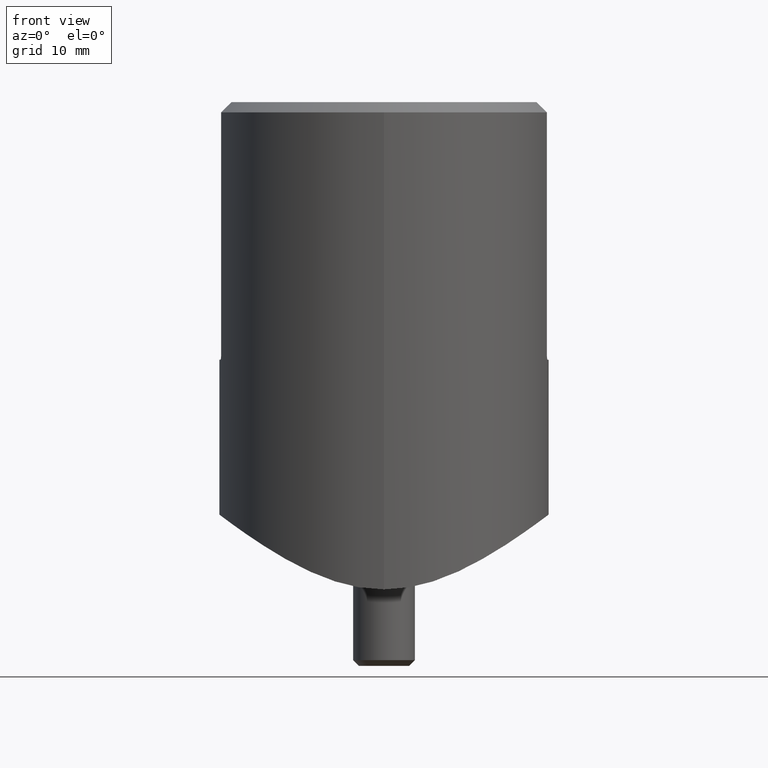
[diagram: clean part render]
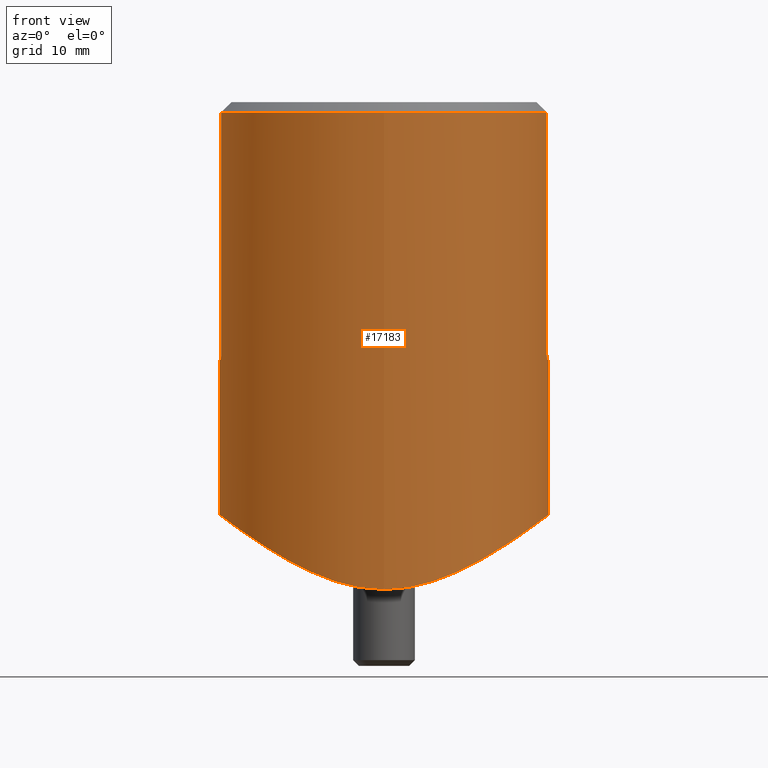
[diagram: same view with one face highlighted and labeled with its STEP entity id]
A machine part, front view. The second image highlights one B-rep face of the part: STEP entity #17183.
In plain terms, the highlighted cylindrical surface (bore or boss wall) has radius 16 mm, axis along (0, 0, 1).
Its self-contained STEP definition (entity closure, byte-faithful):
#56 = CARTESIAN_POINT ( 'NONE',  ( -6.753391629440697486, -14.51414094617094541, -5.744919992293476163 ) ) ;
#299 = CARTESIAN_POINT ( 'NONE',  ( -15.87450786638754430, -2.000000000000001332, 15.00000000000000000 ) ) ;
#352 = CYLINDRICAL_SURFACE ( 'NONE', #7945, 16.00000000000000000 ) ;
#368 = CARTESIAN_POINT ( 'NONE',  ( 4.531723979720646334, -15.34708202131101551, -6.573996821747202901 ) ) ;
#491 = CARTESIAN_POINT ( 'NONE',  ( 15.96038222026085052, -1.158465018893782839, -0.02988661071752247642 ) ) ;
#550 = CARTESIAN_POINT ( 'NONE',  ( 10.54534951738235549, 12.04347108769511721, -3.748717473024008484 ) ) ;
#591 = ORIENTED_EDGE ( 'NONE', *, *, #4982, .T. ) ;
#902 = VERTEX_POINT ( 'NONE', #2369 ) ;
#1219 = CARTESIAN_POINT ( 'NONE',  ( -15.89300773109270182, -2.143837112147937596, -0.08112904144850674459 ) ) ;
#1281 = CARTESIAN_POINT ( 'NONE',  ( -9.758902315905764624, -12.68913418246463820, -4.212401688455844173 ) ) ;
#1340 = CARTESIAN_POINT ( 'NONE',  ( -15.96055035985698822, 1.156137502011802098, -0.02975983528081871735 ) ) ;
#1399 = CARTESIAN_POINT ( 'NONE',  ( -8.057077116543373663, 13.86010795475197988, -5.142077833866056658 ) ) ;
#1464 = CARTESIAN_POINT ( 'NONE',  ( -5.754956585892149867, 14.93797737099522926, -6.154274900691996564 ) ) ;
#1758 = CARTESIAN_POINT ( 'NONE',  ( 5.771737397981975271, -14.93146884535304508, -6.147814608694907257 ) ) ;
#1817 = CARTESIAN_POINT ( 'NONE',  ( -1.626303258728256651E-16, -16.00000000000000711, -7.291729079429031479 ) ) ;
#1876 = CARTESIAN_POINT ( 'NONE',  ( 15.93817551823421752, -1.431354046034916783, -0.04662970192159696103 ) ) ;
#1967 = CARTESIAN_POINT ( 'NONE',  ( 0.000000000000000000, 4.601381025138083840E-16, 38.99999999999999289 ) ) ;
#2090 = DIRECTION ( 'NONE',  ( 0.000000000000000000, -1.917242093807529592E-17, -1.000000000000000000 ) ) ;
#2369 = CARTESIAN_POINT ( 'NONE',  ( 15.80348062927910568, -2.500000000000001332, 15.50000000000000000 ) ) ;
#2569 = CARTESIAN_POINT ( 'NONE',  ( 15.87450786638754430, -2.000000000000001332, 15.00000000000000000 ) ) ;
#2594 = CARTESIAN_POINT ( 'NONE',  ( -2.152365949216199059, 15.86405722069567759, -7.136620393514475857 ) ) ;
#2654 = CARTESIAN_POINT ( 'NONE',  ( -11.57840101167730751, 11.05399059451595534, -3.105182737411339655 ) ) ;
#2666 = VERTEX_POINT ( 'NONE', #6293 ) ;
#2717 = CARTESIAN_POINT ( 'NONE',  ( -11.98245021674925859, -10.65077794842614090, -2.850364466900145999 ) ) ;
#2776 = CARTESIAN_POINT ( 'NONE',  ( -13.49848736592615772, -8.605464545337859761, -1.819466037989154517 ) ) ;
#2840 = CARTESIAN_POINT ( 'NONE',  ( -14.92050240124356719, -5.801501905224089484, -0.8029150028068625655 ) ) ;
#2931 = CARTESIAN_POINT ( 'NONE',  ( 15.80348062927910568, -2.500000000000001332, 38.99999999999999289 ) ) ;
#2961 = CARTESIAN_POINT ( 'NONE',  ( 15.40718059028136366, -4.348134251234794689, -0.4440570060545319664 ) ) ;
#3054 = CARTESIAN_POINT ( 'NONE',  ( 15.80348062927910568, -2.500000000000001332, 40.00000000000000000 ) ) ;
#3141 = CARTESIAN_POINT ( 'NONE',  ( -15.85792382327410088, -2.131631761430428984, 15.00000000000000178 ) ) ;
#3164 = LINE ( 'NONE', #6597, #12757 ) ;
#3206 = CARTESIAN_POINT ( 'NONE',  ( 14.89176136056661015, -5.874881164664799371, -0.8239423185185081877 ) ) ;
#3259 = ORIENTED_EDGE ( 'NONE', *, *, #4796, .F. ) ;
#3268 = CARTESIAN_POINT ( 'NONE',  ( 15.56733302331528002, 3.735479599010235852, -0.3247361820514800268 ) ) ;
#3498 = EDGE_LOOP ( 'NONE', ( #9939 ) ) ;
#3545 = CIRCLE ( 'NONE', #9376, 16.00000000000000000 ) ;
#3905 = CARTESIAN_POINT ( 'NONE',  ( 15.80348062927910568, -2.500000000000001332, 15.50000000000000000 ) ) ;
#3985 = CARTESIAN_POINT ( 'NONE',  ( -5.268028553944183123, 15.11712110581098756, -6.335136773285667822 ) ) ;
#4050 = CARTESIAN_POINT ( 'NONE',  ( 5.346153119692603539, 15.11582109812178842, -6.324808556874159216 ) ) ;
#4081 = CARTESIAN_POINT ( 'NONE',  ( 15.83982324873985448, -2.260249742456961641, 15.05360751858066592 ) ) ;
#4099 = DIRECTION ( 'NONE',  ( 0.000000000000000000, -1.000000000000000000, 0.000000000000000000 ) ) ;
#4111 = CARTESIAN_POINT ( 'NONE',  ( -1.056870708889853017, 15.96745712242029747, -7.254365006510026248 ) ) ;
#4170 = CARTESIAN_POINT ( 'NONE',  ( -10.53261026499774111, -12.05464316011252635, -3.756428090057857272 ) ) ;
#4227 = CARTESIAN_POINT ( 'NONE',  ( -2.744943716173101844, -15.77198210547673263, -7.032738573799941051 ) ) ;
#4383 = EDGE_CURVE ( 'NONE', #11220, #11220, #11754, .T. ) ;
#4402 = DIRECTION ( 'NONE',  ( 0.000000000000000000, -1.000000000000000000, 0.000000000000000000 ) ) ;
#4533 = CARTESIAN_POINT ( 'NONE',  ( -15.87450786638754430, -2.000000000000001332, 15.00000000000000000 ) ) ;
#4540 = CARTESIAN_POINT ( 'NONE',  ( 8.069525454708173839, -13.85284926789490356, -5.135791623346253942 ) ) ;
#4654 = CARTESIAN_POINT ( 'NONE',  ( 15.89386238591646006, 2.137241126135760450, -0.08048320668668526578 ) ) ;
#4796 = EDGE_CURVE ( 'NONE', #13333, #902, #15072, .T. ) ;
#4982 = EDGE_CURVE ( 'NONE', #13333, #13080, #3545, .T. ) ;
#5383 = CARTESIAN_POINT ( 'NONE',  ( -14.26019180554732735, 7.332276696872193966, -1.282429291661284720 ) ) ;
#5441 = CARTESIAN_POINT ( 'NONE',  ( 0.5965268251431751212, 15.99832371518752971, -7.289800709176403437 ) ) ;
#5496 = CARTESIAN_POINT ( 'NONE',  ( -15.76648506597797628, 2.776303286397710846, -0.1758091484875855537 ) ) ;
#5498 = EDGE_CURVE ( 'NONE', #2666, #7756, #16807, .T. ) ;
#5528 = FACE_OUTER_BOUND ( 'NONE', #7461, .T. ) ;
#5566 = CARTESIAN_POINT ( 'NONE',  ( -15.99903379765573597, 0.3281914582495839006, -0.0007292077845556056486 ) ) ;
#5610 = EDGE_CURVE ( 'NONE', #11529, #7756, #17665, .T. ) ;
#5632 = CARTESIAN_POINT ( 'NONE',  ( -1.108154192858799014, -15.97102493837828874, -7.258201291673557876 ) ) ;
#5754 = CARTESIAN_POINT ( 'NONE',  ( 11.92625720807335910, -10.67808563645542996, -2.880181925728674486 ) ) ;
#5940 = CARTESIAN_POINT ( 'NONE',  ( 9.746331983490081896, -12.72900965396750195, -4.231425020445266583 ) ) ;
#6001 = CARTESIAN_POINT ( 'NONE',  ( 14.28069204721817265, 7.234323102792280302, -1.266439997043649068 ) ) ;
#6067 = CARTESIAN_POINT ( 'NONE',  ( 13.77770318303593200, 8.151594390254944145, -1.623642983337796997 ) ) ;
#6168 = CARTESIAN_POINT ( 'NONE',  ( 8.119993183499971678, 13.79568981129034100, -5.099576934542840334 ) ) ;
#6293 = CARTESIAN_POINT ( 'NONE',  ( 15.87450786638754430, -2.000000000000001332, 15.00000000000000000 ) ) ;
#6597 = CARTESIAN_POINT ( 'NONE',  ( -15.80348062927910568, -2.500000000000001332, 40.00000000000000000 ) ) ;
#6797 = CARTESIAN_POINT ( 'NONE',  ( 4.352020226591373664, 15.43429148884953683, -6.662775313353883178 ) ) ;
#6864 = CARTESIAN_POINT ( 'NONE',  ( -2.687656860395874592, 15.78178495399723857, -7.043697160062455609 ) ) ;
#6921 = CARTESIAN_POINT ( 'NONE',  ( -14.27560816033160584, -7.244362112044290924, -1.270084714189328112 ) ) ;
#6985 = CARTESIAN_POINT ( 'NONE',  ( -15.42813627828937761, -4.273538380135216919, -0.4284908929040890935 ) ) ;
#7048 = CARTESIAN_POINT ( 'NONE',  ( -0.5566504948391410856, -16.00000000000000711, -7.291729079429030591 ) ) ;
#7114 = CARTESIAN_POINT ( 'NONE',  ( 4.274968091761180311, -15.42062706231572200, -6.651671224892224288 ) ) ;
#7351 = CARTESIAN_POINT ( 'NONE',  ( -15.80348062927910568, -2.500000000000001332, 15.50000000000000000 ) ) ;
#7360 = CARTESIAN_POINT ( 'NONE',  ( 10.51715629513473615, -12.09911014512030114, -3.771756452734974285 ) ) ;
#7416 = CARTESIAN_POINT ( 'NONE',  ( 14.92410645656392099, 5.792181153928135373, -0.8002759226914162305 ) ) ;
#7461 = EDGE_LOOP ( 'NONE', ( #3259, #591, #10200, #7802, #9592, #11153 ) ) ;
#7475 = CARTESIAN_POINT ( 'NONE',  ( 11.99258949362489268, 10.63932029495834009, -2.843711833477326145 ) ) ;
#7756 = VERTEX_POINT ( 'NONE', #299 ) ;
#7802 = ORIENTED_EDGE ( 'NONE', *, *, #5610, .T. ) ;
#7945 = AXIS2_PLACEMENT_3D ( 'NONE', #11438, #15741, #4402 ) ;
#8137 = CARTESIAN_POINT ( 'NONE',  ( -1.333585453266486809, 15.94668609802829806, -7.230571169322786318 ) ) ;
#8196 = CARTESIAN_POINT ( 'NONE',  ( -13.77180435808656078, -8.161566974566655475, -1.627797001112122333 ) ) ;
#8241 = DIRECTION ( 'NONE',  ( -0.000000000000000000, 1.917242093807535139E-17, 1.000000000000000000 ) ) ;
#8252 = CARTESIAN_POINT ( 'NONE',  ( -12.62999147872431926, -9.876033621038898147, -2.417550034912908874 ) ) ;
#8311 = CARTESIAN_POINT ( 'NONE',  ( -15.99088091184100158, 0.6062585062563703442, -0.006883825660769258420 ) ) ;
#8376 = CARTESIAN_POINT ( 'NONE',  ( -15.54416977350807372, 3.829973541178443242, -0.3420095988910259455 ) ) ;
#8393 = CARTESIAN_POINT ( 'NONE',  ( 7.233277135268926905, 14.28058292065914792, -5.528062286295822858 ) ) ;
#8562 = CARTESIAN_POINT ( 'NONE',  ( 15.76621372928793363, -2.777687048103556045, -0.1760122867516505651 ) ) ;
#8743 = CARTESIAN_POINT ( 'NONE',  ( 14.26218099413760143, -7.328392304349673481, -1.281001842825398196 ) ) ;
#8803 = CARTESIAN_POINT ( 'NONE',  ( 15.99079573636171681, -0.6085174892927568413, -0.006948106034783751300 ) ) ;
#8865 = CARTESIAN_POINT ( 'NONE',  ( 10.91932072216732230, 11.70567254547024838, -3.519662244289357922 ) ) ;
#9376 = AXIS2_PLACEMENT_3D ( 'NONE', #1967, #2090, #11840 ) ;
#9529 = CARTESIAN_POINT ( 'NONE',  ( -9.735216759461760461, 12.73752875661526218, -4.237841588247261093 ) ) ;
#9587 = CARTESIAN_POINT ( 'NONE',  ( -14.89021840252989826, 5.878795276039431528, -0.8250707431238328837 ) ) ;
#9592 = ORIENTED_EDGE ( 'NONE', *, *, #5498, .F. ) ;
#9651 = CARTESIAN_POINT ( 'NONE',  ( -12.88432987720447720, 9.500350630096173532, -2.242115214413923585 ) ) ;
#9717 = CARTESIAN_POINT ( 'NONE',  ( -15.93838224926133051, 1.429072528165982847, -0.04647392374665486325 ) ) ;
#9780 = CARTESIAN_POINT ( 'NONE',  ( -4.326716317625136199, -15.44150472164365162, -6.670485371267386832 ) ) ;
#9939 = ORIENTED_EDGE ( 'NONE', *, *, #4383, .T. ) ;
#9967 = CARTESIAN_POINT ( 'NONE',  ( 12.57846710772382615, -9.901479135589150715, -2.449054475537322251 ) ) ;
#10028 = CARTESIAN_POINT ( 'NONE',  ( 1.113300989678281949, -15.99999999999999645, -7.291729079429030591 ) ) ;
#10085 = CARTESIAN_POINT ( 'NONE',  ( 5.286163273088747339, -15.11073370287291517, -6.328641315693582570 ) ) ;
#10152 = CARTESIAN_POINT ( 'NONE',  ( 12.88950797468065979, -9.493266285335844046, -2.238588735692320419 ) ) ;
#10200 = ORIENTED_EDGE ( 'NONE', *, *, #17427, .T. ) ;
#10211 = CARTESIAN_POINT ( 'NONE',  ( 15.10862621947141982, 5.293301029291518134, -0.6646922037318696574 ) ) ;
#10736 = CARTESIAN_POINT ( 'NONE',  ( -7.171334250182797021, 14.33955152853920900, -5.575490127315395839 ) ) ;
#10949 = CARTESIAN_POINT ( 'NONE',  ( -1.626303258728256651E-16, -16.00000000000000711, -7.291729079429031479 ) ) ;
#11015 = CARTESIAN_POINT ( 'NONE',  ( -8.102393063386971406, -13.80604616813511321, -5.108464127569389390 ) ) ;
#11071 = CARTESIAN_POINT ( 'NONE',  ( 2.229268999370809468, 15.85335027484461179, -7.124529434976298425 ) ) ;
#11103 = CARTESIAN_POINT ( 'NONE',  ( 15.85792072299573796, -2.131656369127064465, 14.99999999999999822 ) ) ;
#11128 = CARTESIAN_POINT ( 'NONE',  ( -15.10555658044030203, -5.302139162929823790, -0.6669524626863310157 ) ) ;
#11153 = ORIENTED_EDGE ( 'NONE', *, *, #11778, .T. ) ;
#11192 = CARTESIAN_POINT ( 'NONE',  ( -3.739527861968691802, 15.56612241706349131, -6.806894729516119291 ) ) ;
#11220 = VERTEX_POINT ( 'NONE', #12022 ) ;
#11381 = CARTESIAN_POINT ( 'NONE',  ( 2.190154533132607551, -15.88540934000919336, -7.157318920131868545 ) ) ;
#11438 = CARTESIAN_POINT ( 'NONE',  ( 0.000000000000000000, 0.000000000000000000, 15.00000000000000000 ) ) ;
#11493 = CARTESIAN_POINT ( 'NONE',  ( -15.83976815885563028, -2.260630164236740569, 15.05385874946701996 ) ) ;
#11529 = VERTEX_POINT ( 'NONE', #13619 ) ;
#11561 = CARTESIAN_POINT ( 'NONE',  ( 3.498910213335222341, -15.61502690496191192, -6.860635304502699761 ) ) ;
#11620 = CARTESIAN_POINT ( 'NONE',  ( 15.85122743626976316, -2.243979007079323296, -0.1120898212579618525 ) ) ;
#11754 = B_SPLINE_CURVE_WITH_KNOTS ( 'NONE', 3,
 ( #1817, #10028, #11381, #11561, #14297, #7114, #368, #10085, #1758, #17072, #4540, #5940, #7360, #16900, #5754, #9967, #10152, #15688, #8743, #3206, #12958, #2961, #15507, #8562, #11620, #1876, #491, #8803, #13018, #17199, #4654, #3268, #15746, #10211, #7416, #14413, #6001, #6067, #17137, #15806, #7475, #8865, #550, #16753, #17592, #12773, #6168, #8393, #15135, #4050, #6797, #17880, #11071, #15381, #5441, #16657, #12596, #4111, #8137, #2594, #6864, #11192, #15314, #3985, #1464, #10736, #1399, #9529, #13871, #2654, #12354, #13749, #9651, #17942, #5383, #9587, #16599, #17997, #8376, #5496, #15250, #9717, #1340, #8311, #5566, #12534, #1219, #15189, #6985, #11128, #2840, #16540, #6921, #8196, #2776, #8252, #2717, #13810, #4170, #1281, #13930, #12471, #11015, #16713, #56, #12409, #9780, #4227, #13996, #5632, #7048, #10949 ),
 .UNSPECIFIED., .T., .F.,
 ( 4, 2, 2, 2, 2, 2, 2, 2, 2, 2, 2, 2, 2, 2, 2, 2, 2, 2, 2, 2, 2, 2, 2, 2, 2, 2, 2, 2, 2, 2, 2, 2, 2, 2, 2, 2, 2, 2, 2, 2, 2, 2, 2, 2, 2, 2, 2, 2, 2, 2, 2, 2, 2, 2, 2, 4 ),
 ( 0.000000000000000000, 0.003270923905546550305, 0.004088654881933187664, 0.004906385858319823288, 0.006541847811093094538, 0.009812771716639634434, 0.01308369562218617520, 0.01471915757495944645, 0.01635461952773271943, 0.01962554343327926540, 0.02126100538605254359, 0.02289646733882581831, 0.02453192929159909302, 0.02534966026798573038, 0.02616739124437236774, 0.02943831514991891718, 0.03107377710269219537, 0.03270923905546546662, 0.03434470100823874134, 0.03598016296101201605, 0.03925108686655856549, 0.04088654881933184715, 0.04252201077210512187, 0.04415747272487839659, 0.04579293467765166437, 0.04906385858319821380, 0.05069932053597148158, 0.05233478248874475630, 0.05315251346513139713, 0.05397024444151803102, 0.05560570639429130574, 0.05724116834706458046, 0.05887663029983785518, 0.06214755420538440461, 0.06541847811093093323, 0.06705394006370421489, 0.06868940201647748267, 0.07196032592202401823, 0.07359578787479729989, 0.07523124982757056767, 0.07686671178034384933, 0.07768444275673049015, 0.07850217373311711710, 0.08177309763866368042, 0.08340855959143694820, 0.08504402154421022986, 0.08667948349698349764, 0.08831494544975677929, 0.09158586935530332873, 0.09322133130807659651, 0.09485679326084987817, 0.09649225521362315983, 0.09812771716639642761, 0.1013986410719429909, 0.1030341030247162726, 0.1046695649774895404 ),
 .UNSPECIFIED. ) ;
#11778 = EDGE_CURVE ( 'NONE', #2666, #902, #14653, .T. ) ;
#11840 = DIRECTION ( 'NONE',  ( 0.000000000000000000, 1.000000000000000000, 0.000000000000000000 ) ) ;
#11983 = DIRECTION ( 'NONE',  ( -0.000000000000000000, -0.000000000000000000, -1.000000000000000000 ) ) ;
#12022 = CARTESIAN_POINT ( 'NONE',  ( 0.000000000000000000, -16.00000000000000000, -7.291729079429027927 ) ) ;
#12091 = CARTESIAN_POINT ( 'NONE',  ( -15.80348062927910568, -2.500000000000001332, 38.99999999999999289 ) ) ;
#12267 = CARTESIAN_POINT ( 'NONE',  ( 15.80348062927911279, -2.500000000000001332, 15.36726831469455590 ) ) ;
#12354 = CARTESIAN_POINT ( 'NONE',  ( -11.91979508669438559, 10.68529591704264803, -2.884390847298735405 ) ) ;
#12409 = CARTESIAN_POINT ( 'NONE',  ( -5.323262074186184023, -15.12406111179118895, -6.333194112839514389 ) ) ;
#12462 = CARTESIAN_POINT ( 'NONE',  ( 0.000000000000000000, -5.881307594028002552E-33, 15.00000000000000000 ) ) ;
#12471 = CARTESIAN_POINT ( 'NONE',  ( -8.530584751657279696, -13.54542712704967222, -4.887748404140132230 ) ) ;
#12534 = CARTESIAN_POINT ( 'NONE',  ( -16.00345714189641200, -1.057370784662350571, 0.002609157905319483845 ) ) ;
#12596 = CARTESIAN_POINT ( 'NONE',  ( -0.5037692406366237607, 15.99446401739765911, -7.285347897839688613 ) ) ;
#12707 = CARTESIAN_POINT ( 'NONE',  ( -15.81232862837629938, -2.445192715101429215, 15.23775289447199377 ) ) ;
#12757 = VECTOR ( 'NONE', #11983, 1000.000000000000000 ) ;
#12773 = CARTESIAN_POINT ( 'NONE',  ( 8.547489509463581214, 13.53474719313155639, -4.878883950974104877 ) ) ;
#12958 = CARTESIAN_POINT ( 'NONE',  ( 15.08152120074196212, -5.369842034908922201, -0.6846341111156308834 ) ) ;
#13018 = CARTESIAN_POINT ( 'NONE',  ( 15.99897892157768986, -0.3303358369276694351, -0.0007706234295385332254 ) ) ;
#13080 = VERTEX_POINT ( 'NONE', #12091 ) ;
#13333 = VERTEX_POINT ( 'NONE', #2931 ) ;
#13619 = CARTESIAN_POINT ( 'NONE',  ( -15.80348062927910568, -2.500000000000001332, 15.50000000000000000 ) ) ;
#13749 = CARTESIAN_POINT ( 'NONE',  ( -12.57240116826240062, 9.909177191261946405, -2.453125730899654577 ) ) ;
#13810 = CARTESIAN_POINT ( 'NONE',  ( -10.90769042888932283, -11.71651977053787519, -3.526850500189124382 ) ) ;
#13871 = CARTESIAN_POINT ( 'NONE',  ( -10.50904057238612843, 12.10621239080875711, -3.776679396018565615 ) ) ;
#13930 = CARTESIAN_POINT ( 'NONE',  ( -9.358846647060939716, -12.98697276874857742, -4.439728925681753147 ) ) ;
#13996 = CARTESIAN_POINT ( 'NONE',  ( -2.200707422548509484, -15.85744399762433332, -7.129148616092828128 ) ) ;
#14167 = CARTESIAN_POINT ( 'NONE',  ( -15.80348062927910568, -2.500000000000001776, 15.36729166975287697 ) ) ;
#14297 = CARTESIAN_POINT ( 'NONE',  ( 3.758788254245248872, -15.55450423640522217, -6.794896491058985077 ) ) ;
#14413 = CARTESIAN_POINT ( 'NONE',  ( 14.51014338279302684, 6.762695842455205053, -1.101143069998163027 ) ) ;
#14653 = B_SPLINE_CURVE_WITH_KNOTS ( 'NONE', 3,
 ( #2569, #11103, #4081, #16511, #12267, #3905 ),
 .UNSPECIFIED., .F., .F.,
 ( 4, 2, 4 ),
 ( 0.000000000000000000, 0.0003924426019321293653, 0.0007848852038642587306 ),
 .UNSPECIFIED. ) ;
#15072 = LINE ( 'NONE', #3054, #16398 ) ;
#15135 = CARTESIAN_POINT ( 'NONE',  ( 6.772154663697476096, 14.50535319712574989, -5.736670131836068443 ) ) ;
#15189 = CARTESIAN_POINT ( 'NONE',  ( -15.56561844658886251, -3.742653530746751667, -0.3260154359395961987 ) ) ;
#15250 = CARTESIAN_POINT ( 'NONE',  ( -15.85150726692695677, 2.242058300729962372, -0.1118794205343183606 ) ) ;
#15314 = CARTESIAN_POINT ( 'NONE',  ( -4.258661867867296280, 15.43189147409027839, -6.662179158877357565 ) ) ;
#15320 = AXIS2_PLACEMENT_3D ( 'NONE', #12462, #8241, #4099 ) ;
#15381 = CARTESIAN_POINT ( 'NONE',  ( 1.142913724488035410, 15.96847216946093262, -7.255270417217980494 ) ) ;
#15507 = CARTESIAN_POINT ( 'NONE',  ( 15.54419297085113350, -3.829765734314748649, -0.3419919665302547096 ) ) ;
#15688 = CARTESIAN_POINT ( 'NONE',  ( 13.75938620449517025, -8.229542736394854785, -1.640257825219575194 ) ) ;
#15741 = DIRECTION ( 'NONE',  ( -0.000000000000000000, 1.917242093807535139E-17, 1.000000000000000000 ) ) ;
#15746 = CARTESIAN_POINT ( 'NONE',  ( 15.43016054019872918, 4.266118579000353961, -0.4269854295512198195 ) ) ;
#15806 = CARTESIAN_POINT ( 'NONE',  ( 12.63886533547549007, 9.864543178264064238, -2.411556408000921081 ) ) ;
#16398 = VECTOR ( 'NONE', #16991, 1000.000000000000000 ) ;
#16511 = CARTESIAN_POINT ( 'NONE',  ( 15.81234660620866528, -2.445081645818321103, 15.23751475380075071 ) ) ;
#16540 = CARTESIAN_POINT ( 'NONE',  ( -14.50553246062891155, -6.772617241176026148, -1.104474218285172560 ) ) ;
#16599 = CARTESIAN_POINT ( 'NONE',  ( -15.08020447359077387, 5.373676401813410664, -0.6856038990527589805 ) ) ;
#16657 = CARTESIAN_POINT ( 'NONE',  ( -0.2280685718240007542, 16.00073548977696447, -7.292575174109972913 ) ) ;
#16713 = CARTESIAN_POINT ( 'NONE',  ( -7.214462897892111037, -14.29010879053191552, -5.536755499413227533 ) ) ;
#16753 = CARTESIAN_POINT ( 'NONE',  ( 9.773436410632511340, 12.67791516816653008, -4.204032105665220342 ) ) ;
#16807 = CIRCLE ( 'NONE', #15320, 16.00000000000000000 ) ;
#16900 = CARTESIAN_POINT ( 'NONE',  ( 11.58517197034397483, -11.04687970096387062, -3.100843010403309119 ) ) ;
#16991 = DIRECTION ( 'NONE',  ( -0.000000000000000000, -0.000000000000000000, -1.000000000000000000 ) ) ;
#17072 = CARTESIAN_POINT ( 'NONE',  ( 7.184837210765833149, -14.33265405076267207, -5.569158192949923425 ) ) ;
#17137 = CARTESIAN_POINT ( 'NONE',  ( 13.50524040440457796, 8.594824831854822378, -1.814755810381864620 ) ) ;
#17183 = ADVANCED_FACE ( 'NONE', ( #5528, #17327 ), #352, .T. ) ;
#17199 = CARTESIAN_POINT ( 'NONE',  ( 16.00363130687131630, 1.052120604143386373, 0.002740602196741600410 ) ) ;
#17327 = FACE_OUTER_BOUND ( 'NONE', #3498, .T. ) ;
#17427 = EDGE_CURVE ( 'NONE', #13080, #11529, #3164, .T. ) ;
#17592 = CARTESIAN_POINT ( 'NONE',  ( 9.374218553144038069, 12.97586162897333217, -4.431123303766270283 ) ) ;
#17665 = B_SPLINE_CURVE_WITH_KNOTS ( 'NONE', 3,
 ( #7351, #14167, #12707, #11493, #3141, #4533 ),
 .UNSPECIFIED., .F., .F.,
 ( 4, 2, 4 ),
 ( 0.000000000000000000, 0.0003924414279784687373, 0.0007848828559569374745 ),
 .UNSPECIFIED. ) ;
#17880 = CARTESIAN_POINT ( 'NONE',  ( 2.772940843249586340, 15.76705925446139211, -7.027247751247998941 ) ) ;
#17942 = CARTESIAN_POINT ( 'NONE',  ( -13.75664138688679117, 8.234396861347178742, -1.642215389182374308 ) ) ;
#17997 = CARTESIAN_POINT ( 'NONE',  ( -15.40687219999922775, 4.349396975398382104, -0.4442877402783139695 ) ) ;